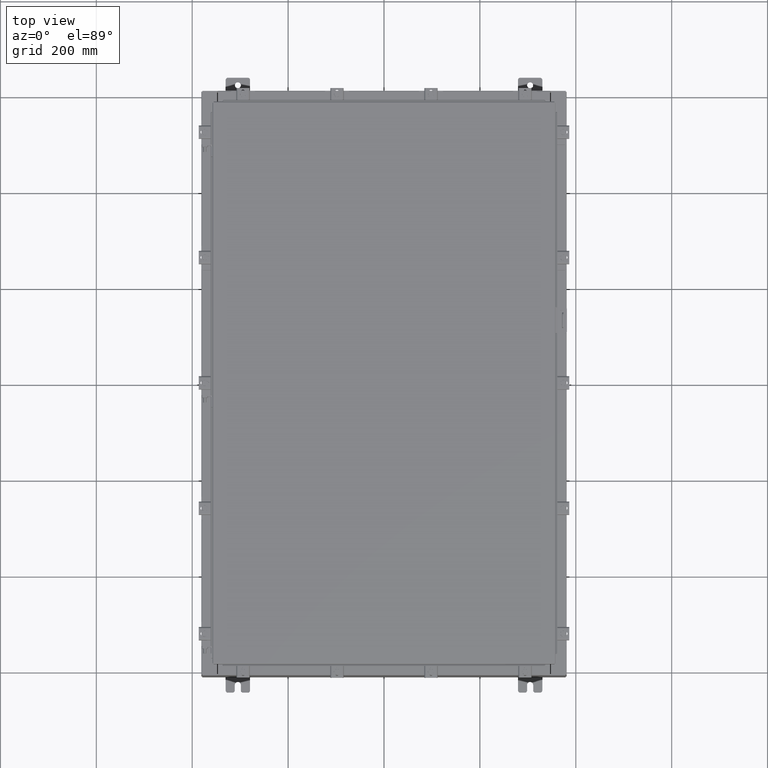
[diagram: clean part render]
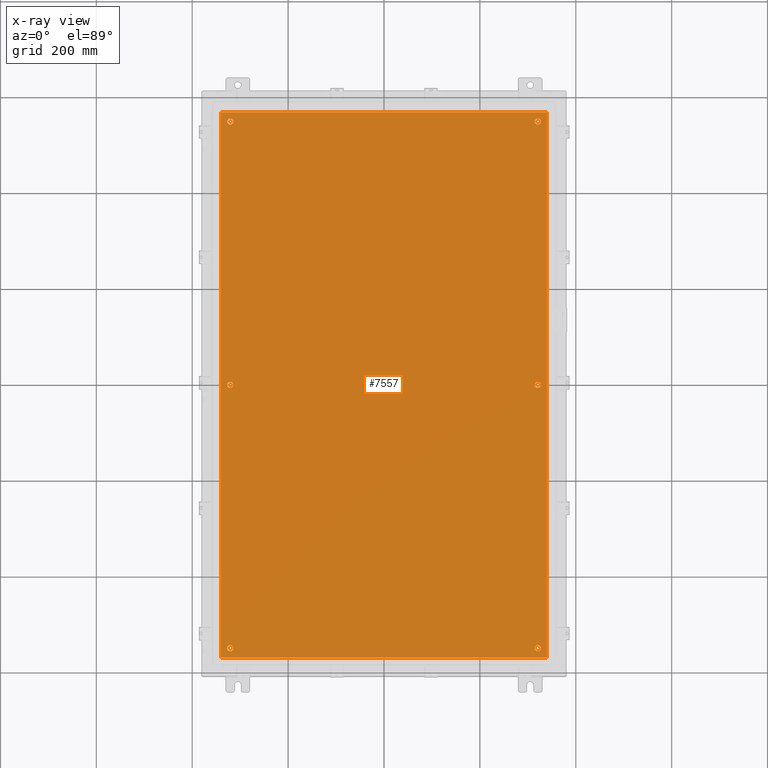
[diagram: x-ray — body ghosted, one internal face saturated and labeled with its STEP entity id]
A machine part, top view, then the same camera in x-ray: the body is ghosted and one INTERNAL B-rep face — a face not visible from any outside direction — is saturated and labeled: STEP entity #7557.
In plain terms, the highlighted planar face has unit normal (0, 0, -1).
Its self-contained STEP definition (entity closure, byte-faithful):
#93 = VERTEX_POINT ( 'NONE', #13481 ) ;
#150 = DIRECTION ( 'NONE',  ( -0.0000000000000000000, -0.0000000000000000000, 1.000000000000000000 ) ) ;
#382 = LINE ( 'NONE', #11398, #14937 ) ;
#392 = CARTESIAN_POINT ( 'NONE',  ( -12.62500000000000000, -8.298848852119578500E-016, -0.1039999999999999800 ) ) ;
#395 = AXIS2_PLACEMENT_3D ( 'NONE', #13187, #10997, #22355 ) ;
#464 = DIRECTION ( 'NONE',  ( -0.0000000000000000000, -0.0000000000000000000, 1.000000000000000000 ) ) ;
#546 = DIRECTION ( 'NONE',  ( 0.0000000000000000000, -1.000000000000000000, 0.0000000000000000000 ) ) ;
#705 = DIRECTION ( 'NONE',  ( -1.000000000000000000, 0.0000000000000000000, 0.0000000000000000000 ) ) ;
#706 = VERTEX_POINT ( 'NONE', #7655 ) ;
#752 = ORIENTED_EDGE ( 'NONE', *, *, #1816, .T. ) ;
#902 = CARTESIAN_POINT ( 'NONE',  ( 12.62500000000000000, 2.262348282635109100E-015, -0.1039999999999999800 ) ) ;
#1251 = DIRECTION ( 'NONE',  ( -0.0000000000000000000, -0.0000000000000000000, 1.000000000000000000 ) ) ;
#1326 = CIRCLE ( 'NONE', #13654, 0.2500000000000008900 ) ;
#1469 = DIRECTION ( 'NONE',  ( 1.000000000000000000, -0.0000000000000000000, -0.0000000000000000000 ) ) ;
#1543 = AXIS2_PLACEMENT_3D ( 'NONE', #11805, #464, #13726 ) ;
#1816 = EDGE_CURVE ( 'NONE', #18060, #3243, #22373, .T. ) ;
#2032 = FACE_OUTER_BOUND ( 'NONE', #23861, .T. ) ;
#2135 = AXIS2_PLACEMENT_3D ( 'NONE', #4460, #17784, #6355 ) ;
#2200 = AXIS2_PLACEMENT_3D ( 'NONE', #5617, #21585, #13353 ) ;
#2238 = CIRCLE ( 'NONE', #11561, 0.2499999999999987000 ) ;
#2476 = CARTESIAN_POINT ( 'NONE',  ( -13.38299999999999900, 22.38300000000000300, -0.1040000000000030900 ) ) ;
#2506 = CARTESIAN_POINT ( 'NONE',  ( -12.87500000000000000, -7.992687152332741600E-016, -0.1039999999999999800 ) ) ;
#2522 = EDGE_LOOP ( 'NONE', ( #6785, #23388 ) ) ;
#2571 = DIRECTION ( 'NONE',  ( -0.0000000000000000000, -0.0000000000000000000, 1.000000000000000000 ) ) ;
#2638 = CARTESIAN_POINT ( 'NONE',  ( 12.62500000000000200, 21.62500000000000400, -0.1039999999999999800 ) ) ;
#2704 = CARTESIAN_POINT ( 'NONE',  ( 0.0000000000000000000, 0.0000000000000000000, -0.1039999999999999800 ) ) ;
#2832 = DIRECTION ( 'NONE',  ( -1.000000000000000000, 0.0000000000000000000, 0.0000000000000000000 ) ) ;
#2919 = CARTESIAN_POINT ( 'NONE',  ( -12.87500000000000000, -21.62500000000000400, -0.1039999999999999800 ) ) ;
#2996 = EDGE_CURVE ( 'NONE', #13830, #12352, #20305, .T. ) ;
#3243 = VERTEX_POINT ( 'NONE', #2506 ) ;
#3779 = EDGE_CURVE ( 'NONE', #4354, #8401, #20566, .T. ) ;
#4210 = VERTEX_POINT ( 'NONE', #24184 ) ;
#4354 = VERTEX_POINT ( 'NONE', #23497 ) ;
#4460 = CARTESIAN_POINT ( 'NONE',  ( 12.62500000000000200, -21.62500000000000400, -0.1039999999999999800 ) ) ;
#4814 = ORIENTED_EDGE ( 'NONE', *, *, #7400, .T. ) ;
#4847 = ORIENTED_EDGE ( 'NONE', *, *, #4915, .T. ) ;
#4915 = EDGE_CURVE ( 'NONE', #12352, #13830, #5304, .T. ) ;
#4979 = CIRCLE ( 'NONE', #2200, 0.2499999999999987000 ) ;
#5304 = CIRCLE ( 'NONE', #23920, 0.2499999999999987000 ) ;
#5347 = EDGE_CURVE ( 'NONE', #4210, #14740, #16620, .T. ) ;
#5348 = VECTOR ( 'NONE', #1469, 39.37007874015748100 ) ;
#5509 = CARTESIAN_POINT ( 'NONE',  ( -12.37499999999999800, -8.298848852119578500E-016, -0.1039999999999999800 ) ) ;
#5617 = CARTESIAN_POINT ( 'NONE',  ( -12.62500000000000200, -21.62500000000000400, -0.1039999999999999800 ) ) ;
#5811 = EDGE_CURVE ( 'NONE', #13100, #12384, #11504, .T. ) ;
#5826 = EDGE_LOOP ( 'NONE', ( #22691, #4847 ) ) ;
#5900 = CARTESIAN_POINT ( 'NONE',  ( -12.37500000000000400, 21.62500000000000400, -0.1039999999999999800 ) ) ;
#6355 = DIRECTION ( 'NONE',  ( -1.000000000000000000, 0.0000000000000000000, 0.0000000000000000000 ) ) ;
#6412 = DIRECTION ( 'NONE',  ( -1.000000000000000000, 0.0000000000000000000, 0.0000000000000000000 ) ) ;
#6529 = ORIENTED_EDGE ( 'NONE', *, *, #5347, .T. ) ;
#6785 = ORIENTED_EDGE ( 'NONE', *, *, #9807, .T. ) ;
#7023 = FACE_BOUND ( 'NONE', #5826, .T. ) ;
#7143 = ORIENTED_EDGE ( 'NONE', *, *, #7702, .F. ) ;
#7400 = EDGE_CURVE ( 'NONE', #23261, #9546, #15687, .T. ) ;
#7454 = EDGE_CURVE ( 'NONE', #9546, #23261, #4979, .T. ) ;
#7557 = ADVANCED_FACE ( 'NONE', ( #8216, #7609, #18376, #17172, #12078, #7023, #2032 ), #16426, .T. ) ;
#7609 = FACE_BOUND ( 'NONE', #19467, .T. ) ;
#7655 = CARTESIAN_POINT ( 'NONE',  ( 13.38300000000000300, 22.38300000000000300, -0.1040000000000009100 ) ) ;
#7702 = EDGE_CURVE ( 'NONE', #93, #4354, #19253, .T. ) ;
#7845 = ORIENTED_EDGE ( 'NONE', *, *, #17666, .F. ) ;
#8107 = CARTESIAN_POINT ( 'NONE',  ( -13.49999999999999500, -22.38300000000000600, -0.1040000000000009400 ) ) ;
#8216 = FACE_BOUND ( 'NONE', #2522, .T. ) ;
#8401 = VERTEX_POINT ( 'NONE', #24192 ) ;
#8688 = CARTESIAN_POINT ( 'NONE',  ( 12.87500000000000000, 21.62500000000000400, -0.1039999999999999800 ) ) ;
#9121 = VECTOR ( 'NONE', #546, 39.37007874015748100 ) ;
#9462 = DIRECTION ( 'NONE',  ( -1.000000000000000000, 0.0000000000000000000, 0.0000000000000000000 ) ) ;
#9521 = DIRECTION ( 'NONE',  ( -0.0000000000000000000, -0.0000000000000000000, 1.000000000000000000 ) ) ;
#9536 = EDGE_CURVE ( 'NONE', #12384, #13100, #2238, .T. ) ;
#9546 = VERTEX_POINT ( 'NONE', #2919 ) ;
#9689 = CARTESIAN_POINT ( 'NONE',  ( -12.62500000000000200, 21.62500000000000400, -0.1039999999999999800 ) ) ;
#9733 = AXIS2_PLACEMENT_3D ( 'NONE', #902, #14187, #2832 ) ;
#9807 = EDGE_CURVE ( 'NONE', #18472, #19509, #1326, .T. ) ;
#10095 = EDGE_LOOP ( 'NONE', ( #17999, #10257 ) ) ;
#10175 = DIRECTION ( 'NONE',  ( 0.0000000000000000000, 1.000000000000000000, 0.0000000000000000000 ) ) ;
#10257 = ORIENTED_EDGE ( 'NONE', *, *, #5811, .T. ) ;
#10262 = CARTESIAN_POINT ( 'NONE',  ( 12.37499999999999800, 2.292964452613792900E-015, -0.1039999999999999800 ) ) ;
#10511 = CARTESIAN_POINT ( 'NONE',  ( 12.62500000000000200, 21.62500000000000400, -0.1039999999999999800 ) ) ;
#10792 = AXIS2_PLACEMENT_3D ( 'NONE', #392, #1251, #6412 ) ;
#10889 = CARTESIAN_POINT ( 'NONE',  ( -12.37500000000000400, -21.62500000000000400, -0.1039999999999999800 ) ) ;
#10903 = ORIENTED_EDGE ( 'NONE', *, *, #12740, .T. ) ;
#10997 = DIRECTION ( 'NONE',  ( -0.0000000000000000000, -0.0000000000000000000, 1.000000000000000000 ) ) ;
#11398 = CARTESIAN_POINT ( 'NONE',  ( 13.50000000000000400, 22.38299999999999900, -0.1040000000000009400 ) ) ;
#11498 = CARTESIAN_POINT ( 'NONE',  ( 12.62500000000000000, 2.262348282635109100E-015, -0.1039999999999999800 ) ) ;
#11504 = CIRCLE ( 'NONE', #12641, 0.2499999999999987000 ) ;
#11561 = AXIS2_PLACEMENT_3D ( 'NONE', #10511, #23807, #12432 ) ;
#11805 = CARTESIAN_POINT ( 'NONE',  ( -12.62500000000000000, -8.298848852119578500E-016, -0.1039999999999999800 ) ) ;
#12078 = FACE_BOUND ( 'NONE', #10095, .T. ) ;
#12186 = CARTESIAN_POINT ( 'NONE',  ( 12.37500000000000400, -21.62500000000000400, -0.1039999999999999800 ) ) ;
#12352 = VERTEX_POINT ( 'NONE', #18037 ) ;
#12384 = VERTEX_POINT ( 'NONE', #8688 ) ;
#12432 = DIRECTION ( 'NONE',  ( -1.000000000000000000, 0.0000000000000000000, 0.0000000000000000000 ) ) ;
#12641 = AXIS2_PLACEMENT_3D ( 'NONE', #2638, #2571, #705 ) ;
#12740 = EDGE_CURVE ( 'NONE', #3243, #18060, #12750, .T. ) ;
#12750 = CIRCLE ( 'NONE', #1543, 0.2500000000000008900 ) ;
#13100 = VERTEX_POINT ( 'NONE', #22469 ) ;
#13187 = CARTESIAN_POINT ( 'NONE',  ( 12.62500000000000200, -21.62500000000000400, -0.1039999999999999800 ) ) ;
#13247 = CARTESIAN_POINT ( 'NONE',  ( -12.62500000000000200, 21.62500000000000400, -0.1039999999999999800 ) ) ;
#13353 = DIRECTION ( 'NONE',  ( -1.000000000000000000, 0.0000000000000000000, 0.0000000000000000000 ) ) ;
#13393 = DIRECTION ( 'NONE',  ( -1.000000000000000000, 0.0000000000000000000, 0.0000000000000000000 ) ) ;
#13481 = CARTESIAN_POINT ( 'NONE',  ( -13.38299999999999900, 22.38300000000000300, -0.1040000000000030900 ) ) ;
#13654 = AXIS2_PLACEMENT_3D ( 'NONE', #11498, #150, #13393 ) ;
#13726 = DIRECTION ( 'NONE',  ( -1.000000000000000000, 0.0000000000000000000, 0.0000000000000000000 ) ) ;
#13830 = VERTEX_POINT ( 'NONE', #5900 ) ;
#14187 = DIRECTION ( 'NONE',  ( -0.0000000000000000000, -0.0000000000000000000, 1.000000000000000000 ) ) ;
#14202 = DIRECTION ( 'NONE',  ( 0.0000000000000000000, 0.0000000000000000000, -1.000000000000000000 ) ) ;
#14740 = VERTEX_POINT ( 'NONE', #12186 ) ;
#14902 = AXIS2_PLACEMENT_3D ( 'NONE', #2704, #14202, #24038 ) ;
#14937 = VECTOR ( 'NONE', #22823, 39.37007874015748100 ) ;
#15115 = DIRECTION ( 'NONE',  ( -1.000000000000000000, 0.0000000000000000000, 0.0000000000000000000 ) ) ;
#15156 = EDGE_LOOP ( 'NONE', ( #4814, #17993 ) ) ;
#15362 = ORIENTED_EDGE ( 'NONE', *, *, #18142, .F. ) ;
#15687 = CIRCLE ( 'NONE', #24281, 0.2499999999999987000 ) ;
#16082 = DIRECTION ( 'NONE',  ( -0.0000000000000000000, -0.0000000000000000000, 1.000000000000000000 ) ) ;
#16134 = ORIENTED_EDGE ( 'NONE', *, *, #3779, .F. ) ;
#16426 = PLANE ( 'NONE',  #14902 ) ;
#16600 = AXIS2_PLACEMENT_3D ( 'NONE', #13247, #16082, #15115 ) ;
#16620 = CIRCLE ( 'NONE', #395, 0.2499999999999987000 ) ;
#16990 = CIRCLE ( 'NONE', #9733, 0.2500000000000008900 ) ;
#17172 = FACE_BOUND ( 'NONE', #17383, .T. ) ;
#17383 = EDGE_LOOP ( 'NONE', ( #6529, #20527 ) ) ;
#17666 = EDGE_CURVE ( 'NONE', #8401, #706, #20056, .T. ) ;
#17779 = CARTESIAN_POINT ( 'NONE',  ( 13.38300000000000300, -22.38300000000000300, -0.1040000000000009100 ) ) ;
#17784 = DIRECTION ( 'NONE',  ( -0.0000000000000000000, -0.0000000000000000000, 1.000000000000000000 ) ) ;
#17993 = ORIENTED_EDGE ( 'NONE', *, *, #7454, .T. ) ;
#17999 = ORIENTED_EDGE ( 'NONE', *, *, #9536, .T. ) ;
#18037 = CARTESIAN_POINT ( 'NONE',  ( -12.87500000000000000, 21.62500000000000400, -0.1039999999999999800 ) ) ;
#18060 = VERTEX_POINT ( 'NONE', #5509 ) ;
#18142 = EDGE_CURVE ( 'NONE', #706, #93, #382, .T. ) ;
#18193 = CIRCLE ( 'NONE', #2135, 0.2499999999999987000 ) ;
#18249 = DIRECTION ( 'NONE',  ( -1.000000000000000000, 0.0000000000000000000, 0.0000000000000000000 ) ) ;
#18376 = FACE_BOUND ( 'NONE', #15156, .T. ) ;
#18472 = VERTEX_POINT ( 'NONE', #23610 ) ;
#19253 = LINE ( 'NONE', #2476, #9121 ) ;
#19444 = EDGE_CURVE ( 'NONE', #14740, #4210, #18193, .T. ) ;
#19451 = VECTOR ( 'NONE', #10175, 39.37007874015748100 ) ;
#19467 = EDGE_LOOP ( 'NONE', ( #752, #10903 ) ) ;
#19509 = VERTEX_POINT ( 'NONE', #10262 ) ;
#19552 = EDGE_CURVE ( 'NONE', #19509, #18472, #16990, .T. ) ;
#20056 = LINE ( 'NONE', #17779, #19451 ) ;
#20274 = CARTESIAN_POINT ( 'NONE',  ( -12.62500000000000200, -21.62500000000000400, -0.1039999999999999800 ) ) ;
#20305 = CIRCLE ( 'NONE', #16600, 0.2499999999999987000 ) ;
#20527 = ORIENTED_EDGE ( 'NONE', *, *, #19444, .T. ) ;
#20566 = LINE ( 'NONE', #8107, #5348 ) ;
#21012 = DIRECTION ( 'NONE',  ( -0.0000000000000000000, -0.0000000000000000000, 1.000000000000000000 ) ) ;
#21585 = DIRECTION ( 'NONE',  ( -0.0000000000000000000, -0.0000000000000000000, 1.000000000000000000 ) ) ;
#22355 = DIRECTION ( 'NONE',  ( -1.000000000000000000, 0.0000000000000000000, 0.0000000000000000000 ) ) ;
#22373 = CIRCLE ( 'NONE', #10792, 0.2500000000000008900 ) ;
#22469 = CARTESIAN_POINT ( 'NONE',  ( 12.37500000000000400, 21.62500000000000400, -0.1039999999999999800 ) ) ;
#22691 = ORIENTED_EDGE ( 'NONE', *, *, #2996, .T. ) ;
#22823 = DIRECTION ( 'NONE',  ( -1.000000000000000000, -0.0000000000000000000, -0.0000000000000000000 ) ) ;
#23261 = VERTEX_POINT ( 'NONE', #10889 ) ;
#23388 = ORIENTED_EDGE ( 'NONE', *, *, #19552, .T. ) ;
#23497 = CARTESIAN_POINT ( 'NONE',  ( -13.38299999999999900, -22.38300000000000600, -0.1040000000000009400 ) ) ;
#23610 = CARTESIAN_POINT ( 'NONE',  ( 12.87500000000000000, 2.262348282635109100E-015, -0.1039999999999999800 ) ) ;
#23807 = DIRECTION ( 'NONE',  ( -0.0000000000000000000, -0.0000000000000000000, 1.000000000000000000 ) ) ;
#23861 = EDGE_LOOP ( 'NONE', ( #16134, #7143, #15362, #7845 ) ) ;
#23920 = AXIS2_PLACEMENT_3D ( 'NONE', #9689, #9521, #9462 ) ;
#24038 = DIRECTION ( 'NONE',  ( -1.000000000000000000, 0.0000000000000000000, -0.0000000000000000000 ) ) ;
#24184 = CARTESIAN_POINT ( 'NONE',  ( 12.87500000000000000, -21.62500000000000400, -0.1039999999999999800 ) ) ;
#24192 = CARTESIAN_POINT ( 'NONE',  ( 13.38300000000000300, -22.38300000000000300, -0.1040000000000009100 ) ) ;
#24281 = AXIS2_PLACEMENT_3D ( 'NONE', #20274, #21012, #18249 ) ;